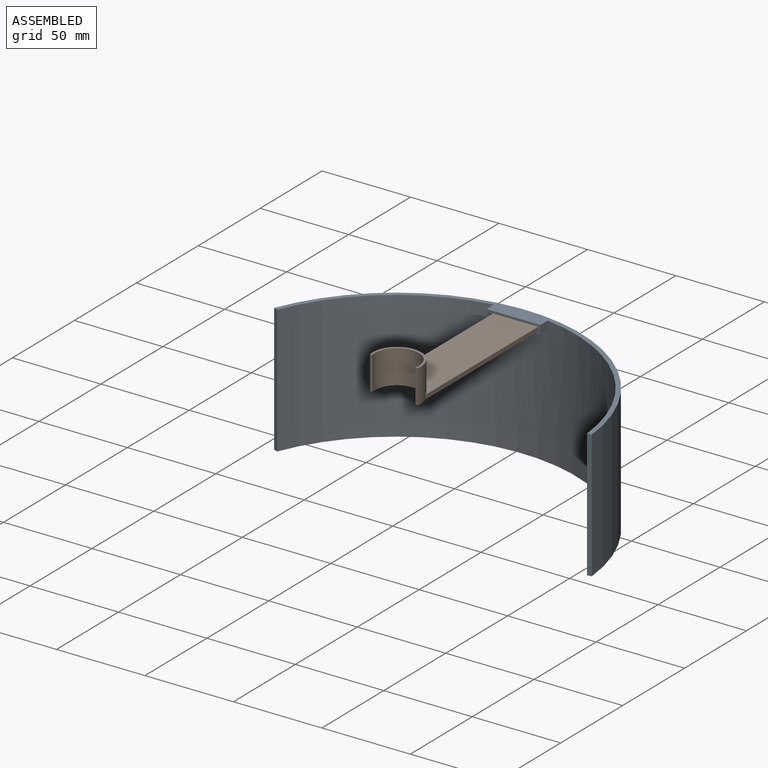
[diagram: assembled view]
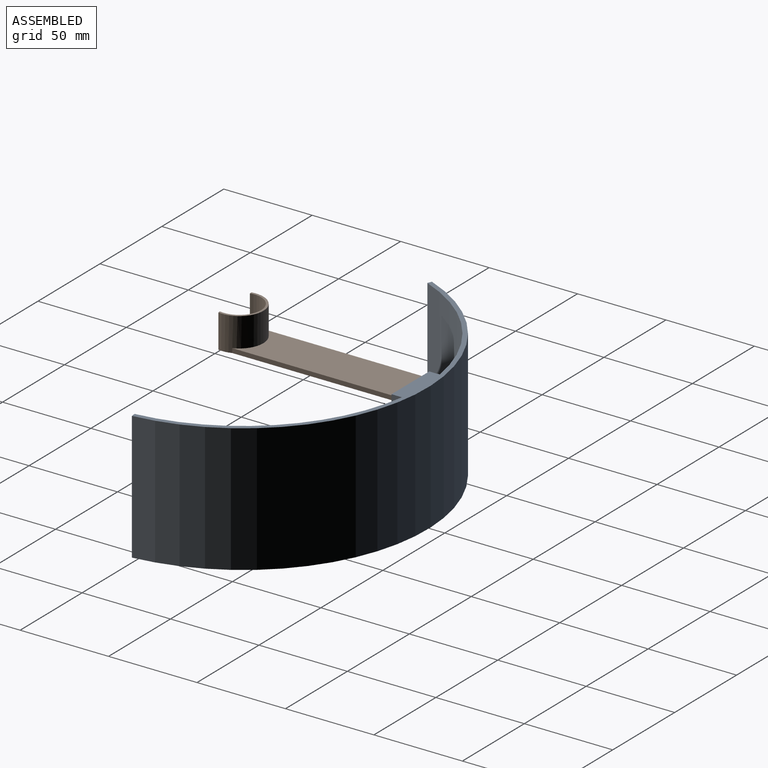
[diagram: assembled view, second angle]
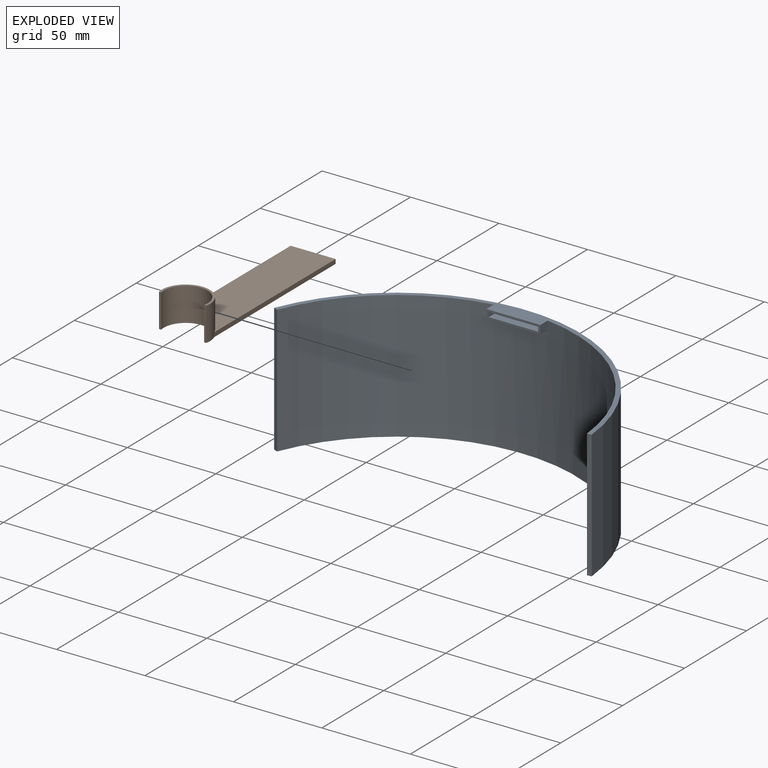
[diagram: exploded view]
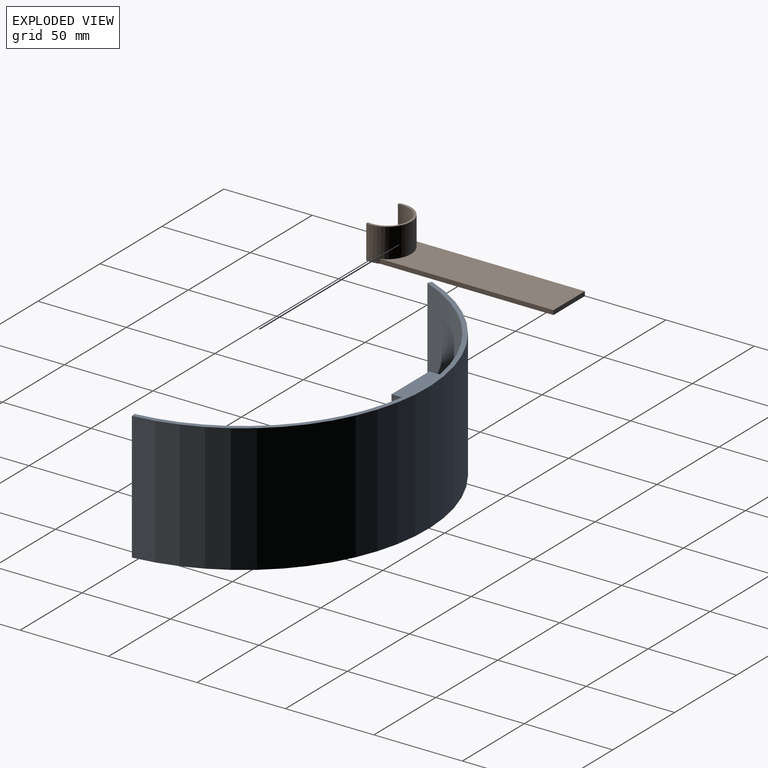
[diagram: exploded view, second angle]
ASSEMBLY  parts=2 mates=2
PART A: 15 faces, bbox 200.2x94.7x72.4 mm
  f0: cylinder r=101.6mm len=195.29mm, axis (0,0,1), area 19427mm2, adj f1,f3,f4,f5,f7,f8,f13
  f1: plane 72.39x2.53mm, normal (0.09,-1,0), area 183.9mm2, adj f0,f2,f4,f5
  f2: cylinder r=104.14mm len=200.18mm, axis (0,0,1), area 20072mm2, adj f1,f3,f4,f5
  f3: plane 72.39x2.35mm, normal (-0.38,-0.93,0), area 183.9mm2, adj f0,f2,f4,f5
  f4: plane 200.18x94.67mm, normal (0,0,-1), area 695.7mm2, adj f0,f1,f2,f3
  f5: plane 200.18x94.67mm, normal (0,0,1), area 898.6mm2, adj f0,f1,f2,f3,f7,f10,f13
  f6: plane 6.07x2.54mm, normal (-1,0,0), area 15.4mm2, adj f9,f10,f11,f14
  f7: plane 5.89x5.08mm, normal (-1,0,0), area 29.9mm2, adj f0,f5,f8,f10
  f8: plane 30.48x7.04mm, normal (0,0,-1), area 202.9mm2, adj f0,f7,f10,f13
  f9: plane 27.94x7.04mm, normal (0,0,1), area 187.7mm2, adj f6,f10,f12,f14
  f10: plane 30.48x5.08mm, normal (0,-1,0), area 83.9mm2, adj f5,f6,f7,f8,f9,f11,f12,f13
  f11: plane 27.94x7.04mm, normal (0,0,-1), area 187.7mm2, adj f6,f10,f12,f14
  f12: plane 6.07x2.54mm, normal (1,0,0), area 15.4mm2, adj f9,f10,f11,f14
  f13: plane 5.89x5.08mm, normal (1,0,0), area 29.9mm2, adj f0,f5,f8,f10
  f14: cylinder r=101.6mm len=27.94mm, axis (0,0,1), area 71.2mm2, adj f6,f9,f11,f12
PART B: 10 faces, bbox 27.3x105.3x19.1 mm
  f0: cylinder r=12.36mm len=24.71mm, axis (0,0,-1), area 833.8mm2, adj f1,f3,f4,f5
  f1: plane 19.05x1.29mm, normal (0,-1,0), area 24.6mm2, adj f0,f2,f4,f5
  f2: cylinder r=13.63mm len=27.25mm, axis (0,0,-1), area 828.3mm2, adj f1,f3,f4,f5,f6,f8,f9
  f3: plane 19.05x1.29mm, normal (0,-1,0), area 24.6mm2, adj f0,f2,f4,f5
  f4: plane 27.25x16.09mm, normal (0,0,1), area 58.1mm2, adj f0,f1,f2,f3
  f5: plane 105.34x27.25mm, normal (0,0,-1), area 2385.8mm2, adj f0,f1,f2,f3,f7,f8,f9
  f6: plane 97.94x25.4mm, normal (0,0,1), area 2327.7mm2, adj f2,f7,f8,f9
  f7: plane 25.4x2.49mm, normal (0,1,0), area 63.2mm2, adj f5,f6,f8,f9
  f8: plane 97.94x2.49mm, normal (-1,0,0), area 243.8mm2, adj f2,f5,f6,f7
  f9: plane 97.94x2.49mm, normal (1,0,0), area 243.8mm2, adj f2,f5,f6,f7
PLACE A t=(-193.23,-148.94,44.5)mm
PLACE B t=(-90.8,-159.69,40.74)mm
MATE planar A.f6 <-> B.f9  axis (-1,0,0) through (-78.1,-60.81,41.96)mm
MATE planar A.f11 <-> B.f6  axis (0,0,-1) through (-92.07,-60.48,43.23)mm
